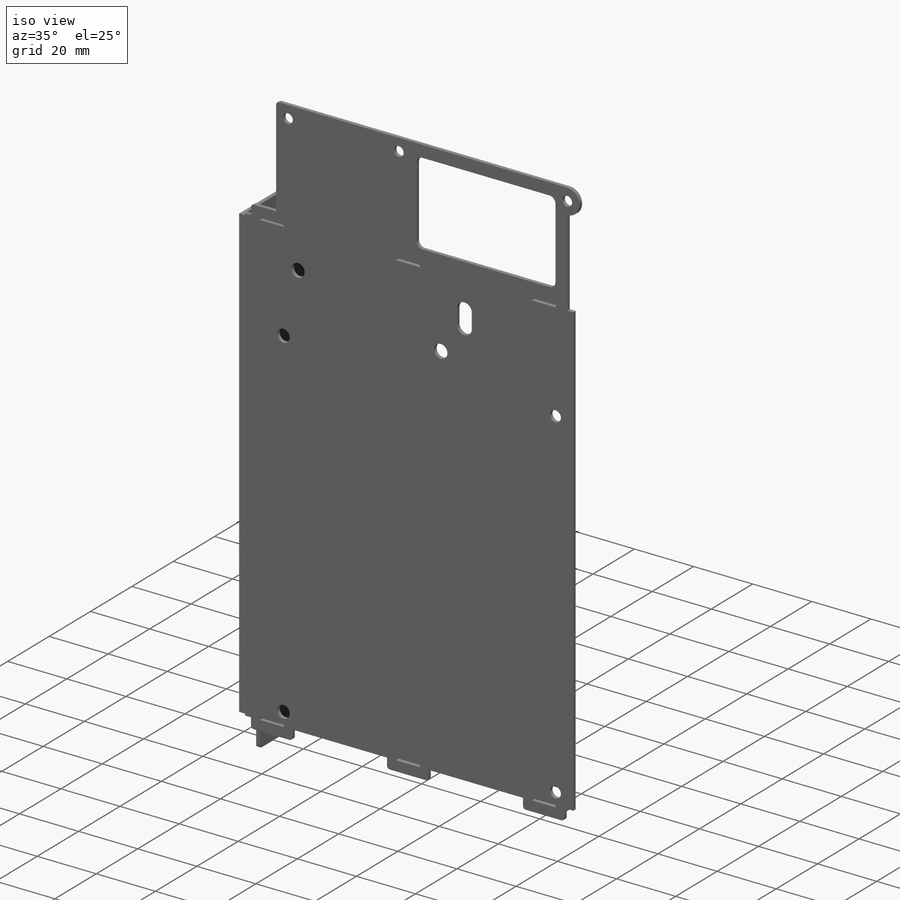
[diagram: iso view]
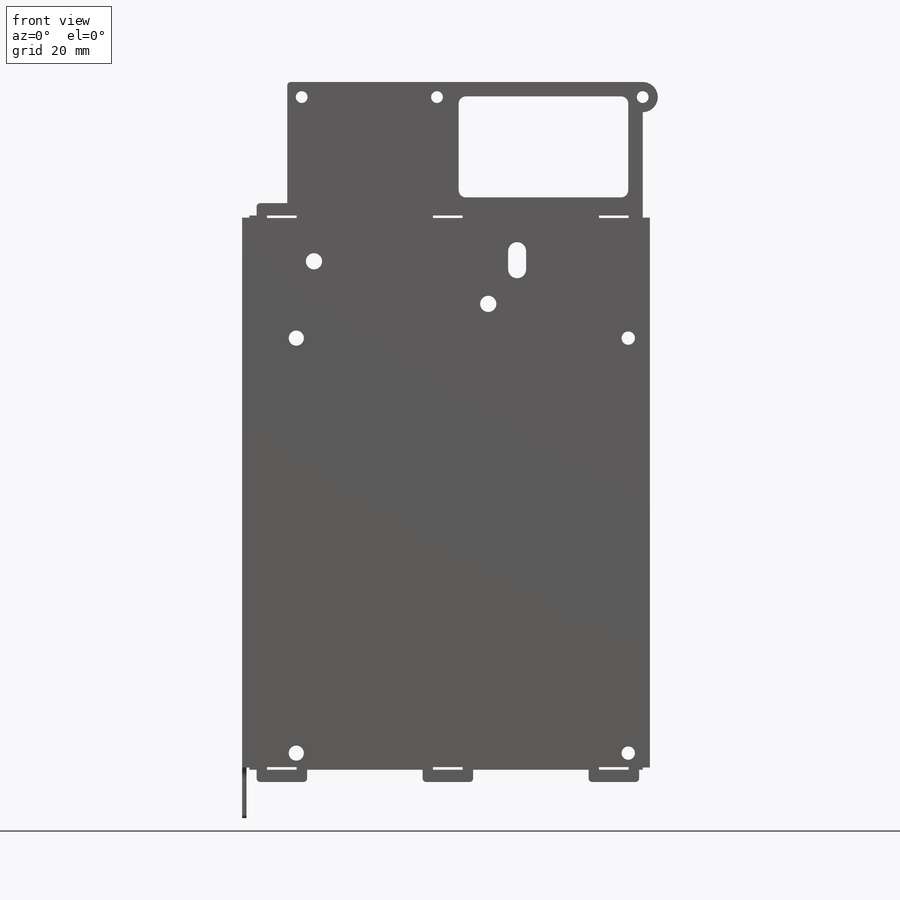
[diagram: front view]
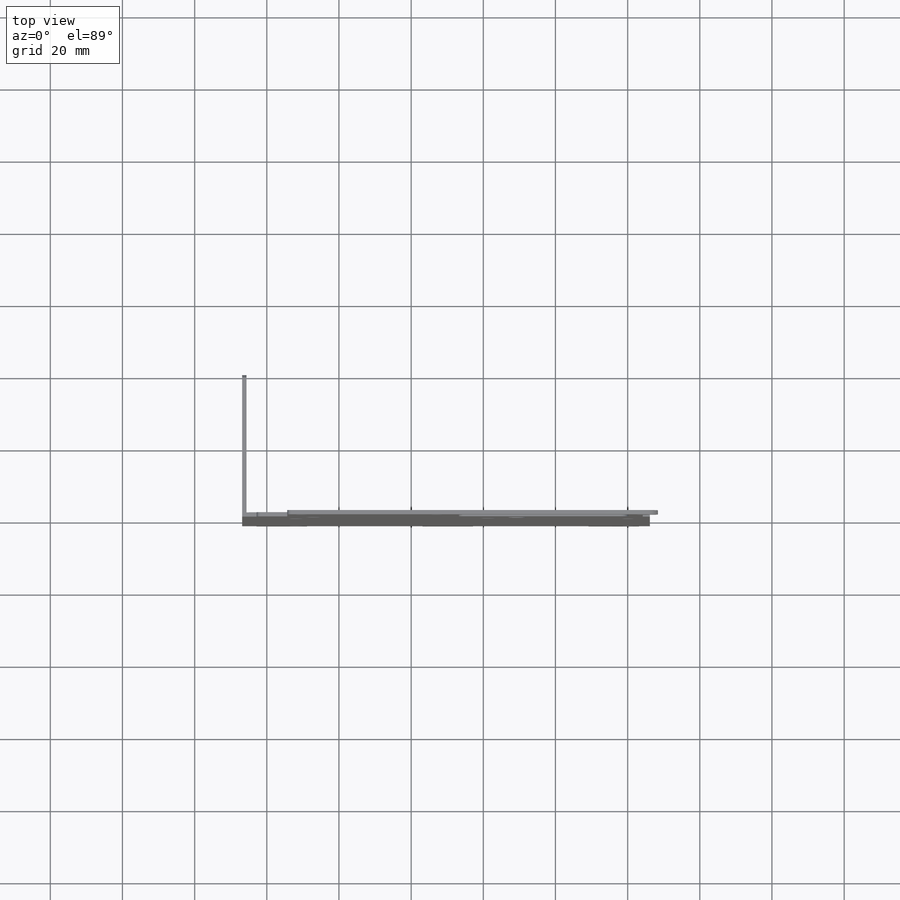
[diagram: top view]
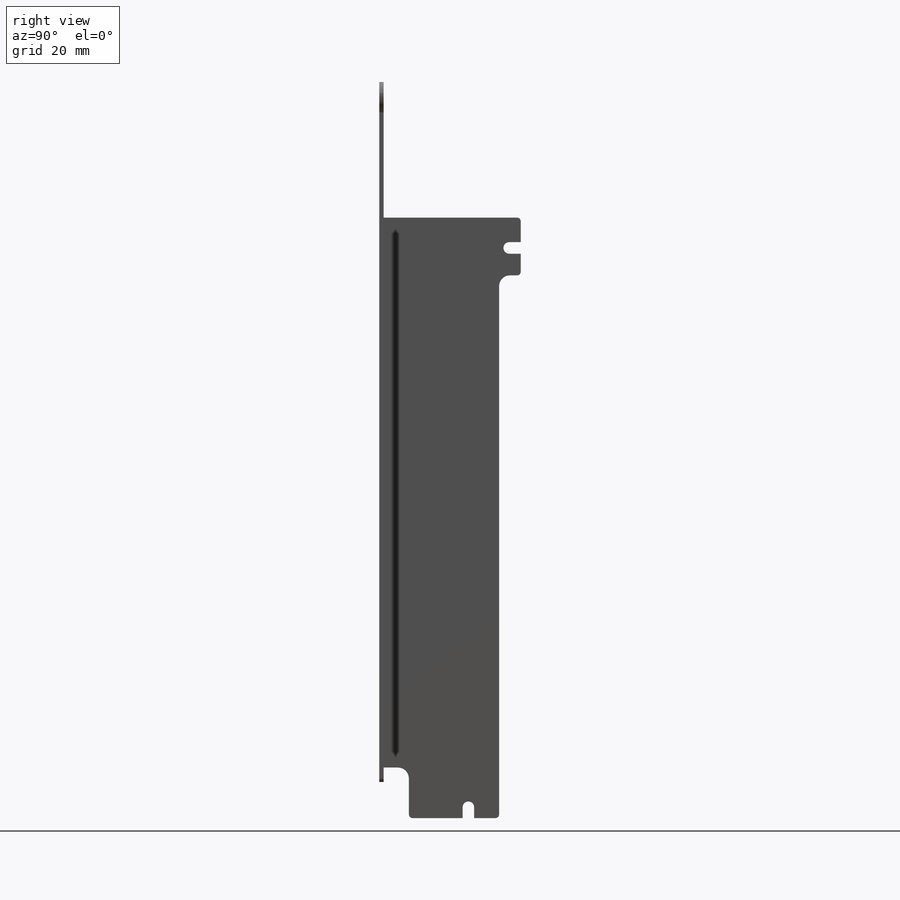
[diagram: right view]
SOLIDWORKS PART (.sldprt)
format: sldprt  version: not decoded by parser v0  size: 1,689,600 bytes
history: native  units: mm
features: sketch x25, extrude x8, cut_extrude x6, sheet_metal_op x3, fillet x2, material x1 + 3 further entries (+13 scaffold rows collapsed; 3 parser-record rows omitted)
feature tree (64):
  scaffold x13  (default folders/planes/origin — collapsed)
  material  "Nickel"
  sketch  "Model"
  sketch  "Sketch2"  dims[c1.D2=~4.407517mm c1.D3=~4.407517mm c1.D4=4.2mm c1.D5=3.7mm c2.D2=5.0mm c2.D3=4.2mm c3.D2=5.0mm c3.D3=~5.345399mm c4.D2=20.0mm c4.D3=10.0mm c5.D2=20.0mm c5.D3=10.0mm c5.D1=4.0mm c6.D3=20.0mm c6.D2=67.0mm c6.D1=2.0mm c7.D3=0.6mm c7.D6=11.0mm c7.D1=2.5mm]
  extrude  "Boss-Extrude1"  Depth=1.2mm SharpBend4=0
  sketch  "Sketch3"  dims[D1=0.6mm D2=0.6mm D3=37.6mm]
  sketch  "Sketch5"  dims[c1.D1=12.5mm c1.D2=0.6mm c1.D3=2.0mm c1.D4=2.0mm c2.D2=0.6mm]
  cut_extrude  "Cut-Extrude2"  [1 undecoded]
  sketch  "Sketch4"  dims[c1.D3=2.0mm c1.D1=28.0mm c1.D2=47.0mm c1.D4=2.6mm c1.D5=6.0mm c2.D4=4.0mm]
  cut_extrude  "Cut-Extrude1"  [1 undecoded]
  sketch  "Sketch6"  dims[c1.D1=1.6mm c1.D2=5.8mm c1.D7=7.0mm c1.D8=1.75mm c1.D3=42.0mm c1.D4=62.0mm c1.D5=82.0mm c1.D6=102.0mm c2.D7=7.0mm c2.D9=20.85mm c2.D10=123.15mm]
  sketch  "Sketch7"  dims[D1=6.0mm D2=4.0mm D3=15.0mm D4=8.2mm D5=8.2mm D6=2.5mm D7=0.7mm D8=7.5mm]
  sketch  "Sketch8"
  sketch  "Sketch9"  dims[c1.D1=3.4mm c1.D2=14.0mm c1.D3=4.0mm c1.D4=8.2mm c2.D3=4.0mm]
  extrude  "Boss-Extrude5"  [1 undecoded]
  fillet  "Fillet1"  Radius=1mm
  sketch  "Sketch10"  dims[D1=8.2mm D2=0.7mm]
  cut_extrude  "Cut-Extrude4"  [1 undecoded]
  sketch  "Sketch11"  dims[c1.D1=4.5mm c1.D4=2.5mm c1.D8=3.2mm c1.D9=3.2mm c1.D2=7.7mm c1.D3=13.0mm c1.D5=5.0mm c1.D6=9.6mm c1.D7=8.0mm c2.D8=48.3mm c2.D9=11.8mm]
  cut_extrude  "Cut-Extrude5"  [1 undecoded]
  sketch  "Sketch12"  dims[D1=4.2mm]
  extrude  "Boss-Extrude6"  [1 undecoded]
  sketch  "Sketch13"  dims[D1=57.0mm D2=4.0mm]
  cut_extrude  "Cut-Extrude6"  [1 undecoded]
  extrude  "Convert-Solid3"  Depth=0 SharpBend5=0 SharpBend6=0
  sketch  "Sketch14"  dims[D1=1.2mm]
  extrude  "Boss-Extrude7"  Depth=32mm
  sketch  "Sketch16"  dims[D3=3.0mm D1=14.0mm D2=25.0mm]
  extrude  "Boss-Extrude8"  [1 undecoded]
  sketch  "Sketch17"  dims[D3=3.0mm D1=16.0mm D2=6.0mm]
  extrude  "Boss-Extrude9"  [1 undecoded]
  sketch  "Sketch15"  dims[D2=1.6mm D1=16.0mm D3=10.0mm D4=12.0mm D5=8.4mm D6=36.0mm D7=8.0mm D8=11.0mm D9=16.5mm]
  cut_extrude  "Cut-Extrude7"  [1 undecoded]
  fillet  "Fillet2"  Radius=1mm
  extrude  "Convert-Solid5"  Depth=0 SharpBend8=0
  sketch  "Bend-Lines3"
  sketch  "Bounding-Box3"
  sheet_metal_op  "Sheet-Metal(19)"
  "Flat-Pattern(19)"
  sketch  "Bend-Lines4"
  sketch  "Bounding-Box4"
  parser-record x3  (decoder bookkeeping rows leaked as tree rows — omitted from the tree; the rows remain in map.json)
  sheet_metal_op  "Sheet-Metal(32)"
  "Flat-Pattern(32)"
  sketch  "Bend-Lines5"
  sketch  "Bounding-Box5"
  sheet_metal_op  "Sheet-Metal(37)"
  "Flat-Pattern(37)"
  sketch  "Bend-Lines7"
  sketch  "Bounding-Box7"
decode coverage: 21 of 44 modeling features carry decoded parameters; 3 rows unclassified (native names shown)
note: ~ marks probable driven/reference dimensions
note: 10 parameter values undecoded
summary: no parameter record found for 10 features
note: suppression state not decoded; provenance and decode notes live in map.json
